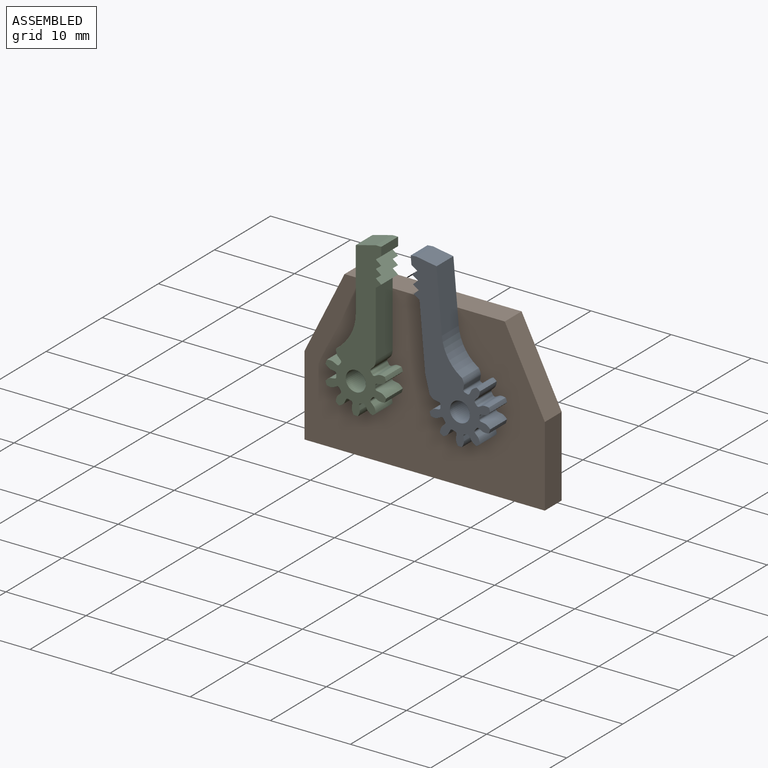
[diagram: assembled view]
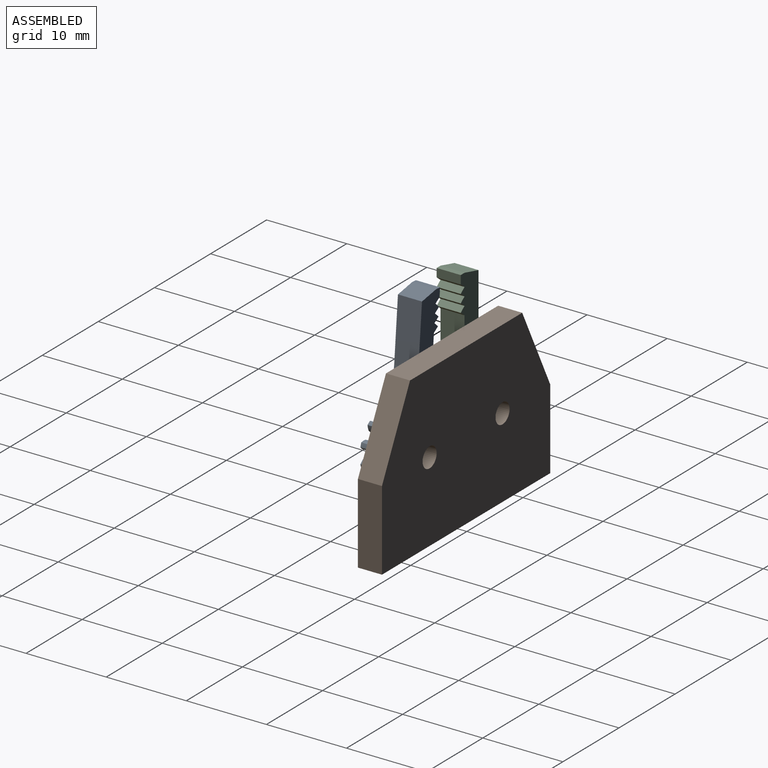
[diagram: assembled view, second angle]
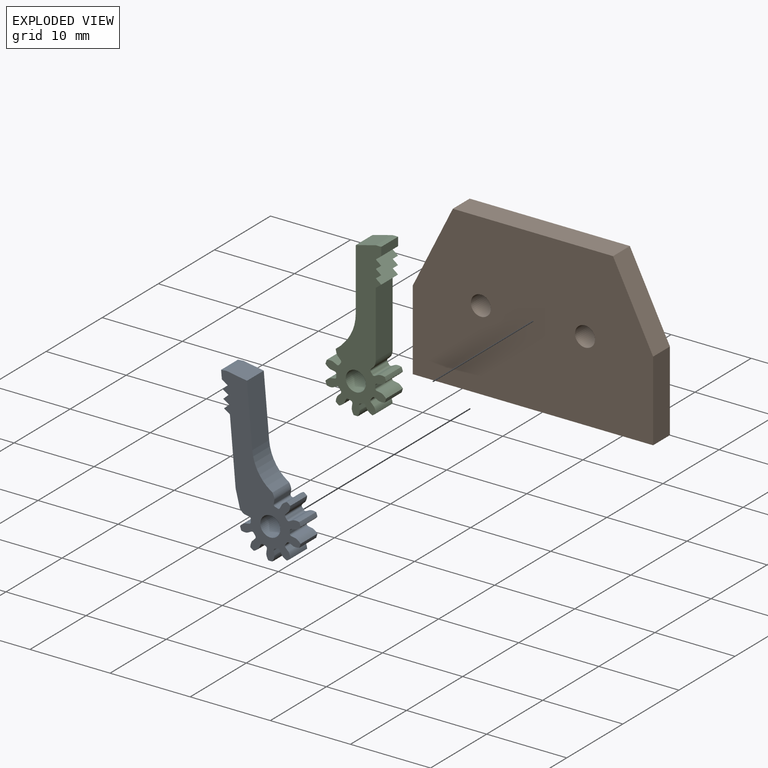
[diagram: exploded view]
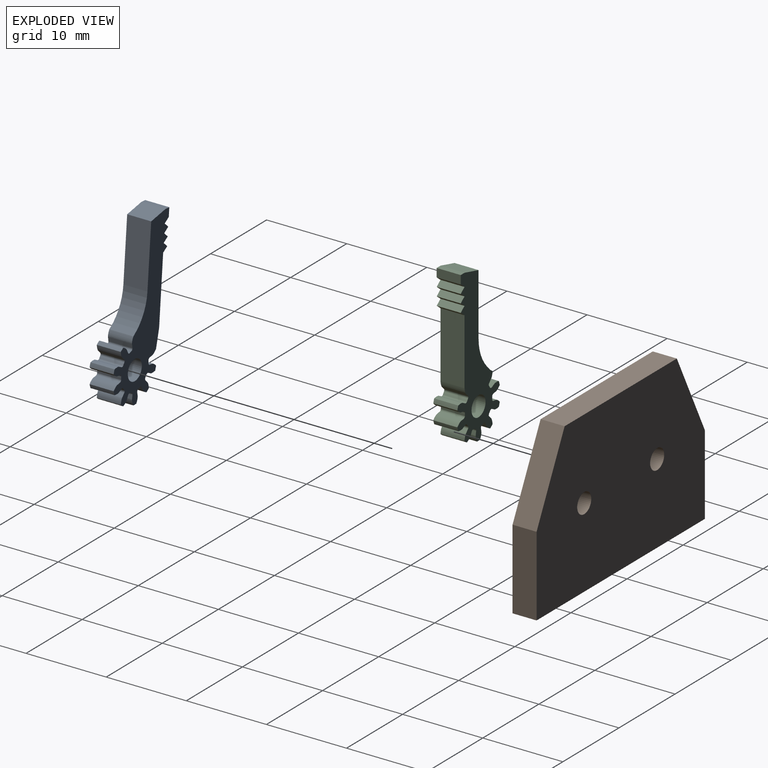
[diagram: exploded view, second angle]
ASSEMBLY  parts=3 mates=2
PART A: 65 faces, bbox 9.9x3x20 mm
  f0: extruded ~3x1.14mm, area 3.9mm2, adj f30,f31,f32,f33
  f1: cylinder r=2.44mm len=3mm, axis (0,1,0), area 0.9mm2, adj f31,f32,f33,f34
  f2: extruded ~3x1.14mm, area 3.9mm2, adj f31,f32,f34,f52
  f3: extruded ~3x1.25mm, area 3.9mm2, adj f31,f32,f35,f51
  f4: cylinder r=2.44mm len=3mm, axis (0,1,0), area 0.9mm2, adj f31,f32,f35,f36
  f5: extruded ~3x0.91mm, area 3.9mm2, adj f6,f31,f32,f36
  f6: cylinder r=3.9mm len=3mm, axis (0,1,0), area 1.6mm2, adj f5,f7,f31,f32
  f7: extruded ~3x1.11mm, area 3.9mm2, adj f6,f31,f32,f37
  f8: cylinder r=2.44mm len=3mm, axis (0,1,0), area 0.9mm2, adj f31,f32,f37,f38
  f9: extruded ~3x1.24mm, area 3.9mm2, adj f10,f31,f32,f38
  f10: cylinder r=3.9mm len=3mm, axis (0,1,0), area 1.6mm2, adj f9,f11,f31,f32
  f11: extruded ~3x1.14mm, area 3.9mm2, adj f10,f31,f32,f39
  f12: cylinder r=2.44mm len=3mm, axis (0,1,0), area 0.9mm2, adj f31,f32,f39,f40
  f13: extruded ~3x1.14mm, area 3.9mm2, adj f14,f31,f32,f40
  f14: cylinder r=3.9mm len=3mm, axis (0,1,0), area 1.6mm2, adj f13,f15,f31,f32
  f15: extruded ~3x1.24mm, area 3.9mm2, adj f14,f31,f32,f41
  f16: cylinder r=2.44mm len=3mm, axis (0,1,0), area 0.9mm2, adj f31,f32,f41,f42
  f17: extruded ~3x1.11mm, area 3.9mm2, adj f18,f31,f32,f42
  f18: cylinder r=3.9mm len=3mm, axis (0,1,0), area 1.6mm2, adj f17,f19,f31,f32
  f19: extruded ~3x0.91mm, area 3.9mm2, adj f18,f31,f32,f43
  f20: cylinder r=2.44mm len=3mm, axis (0,1,0), area 0.9mm2, adj f31,f32,f43,f44
  f21: extruded ~3x1.25mm, area 3.9mm2, adj f22,f31,f32,f44
  f22: cylinder r=3.9mm len=3mm, axis (0,1,0), area 1.6mm2, adj f21,f23,f31,f32
  f23: extruded ~3x1.25mm, area 3.9mm2, adj f22,f31,f32,f45
  f24: cylinder r=2.44mm len=3mm, axis (0,1,0), area 0.9mm2, adj f31,f32,f45,f46
  f25: extruded ~3x0.91mm, area 3.9mm2, adj f26,f31,f32,f46
  f26: cylinder r=3.9mm len=3mm, axis (0,1,0), area 1.6mm2, adj f25,f27,f31,f32
  f27: extruded ~3x1.11mm, area 3.9mm2, adj f26,f31,f32,f47
  f28: cylinder r=2.44mm len=3mm, axis (0,1,0), area 0.9mm2, adj f31,f32,f47,f48
  f29: extruded ~3x1.24mm, area 3.9mm2, adj f30,f31,f32,f48
  f30: cylinder r=3.9mm len=3mm, axis (0,1,0), area 1.6mm2, adj f0,f29,f31,f32
  f31: plane 20x9.94mm, normal (0,-1,0), area 68.5mm2, adj f0,f1,f2,f3,f4,f5,f6,f7
  f32: plane 20x9.94mm, normal (0,1,0), area 68.5mm2, adj f0,f1,f2,f3,f4,f5,f6,f7
  f33: cylinder r=0.25mm len=3mm, axis (0,1,0), area 1.1mm2, adj f0,f1,f31,f32
  f34: cylinder r=0.25mm len=3mm, axis (0,1,0), area 1.1mm2, adj f1,f2,f31,f32
  f35: cylinder r=0.25mm len=3mm, axis (0,1,0), area 1.1mm2, adj f3,f4,f31,f32
  f36: cylinder r=0.25mm len=3mm, axis (0,1,0), area 1.1mm2, adj f4,f5,f31,f32
  f37: cylinder r=0.25mm len=3mm, axis (0,1,0), area 1.1mm2, adj f7,f8,f31,f32
  f38: cylinder r=0.25mm len=3mm, axis (0,1,0), area 1.1mm2, adj f8,f9,f31,f32
  f39: cylinder r=0.25mm len=3mm, axis (0,1,0), area 1.1mm2, adj f11,f12,f31,f32
  f40: cylinder r=0.25mm len=3mm, axis (0,1,0), area 1.1mm2, adj f12,f13,f31,f32
  f41: cylinder r=0.25mm len=3mm, axis (0,1,0), area 1.1mm2, adj f15,f16,f31,f32
  f42: cylinder r=0.25mm len=3mm, axis (0,1,0), area 1.1mm2, adj f16,f17,f31,f32
  f43: cylinder r=0.25mm len=3mm, axis (0,1,0), area 1.1mm2, adj f19,f20,f31,f32
  f44: cylinder r=0.25mm len=3mm, axis (0,1,0), area 1.1mm2, adj f20,f21,f31,f32
  f45: cylinder r=0.25mm len=3mm, axis (0,1,0), area 1.1mm2, adj f23,f24,f31,f32
  f46: cylinder r=0.25mm len=3mm, axis (0,1,0), area 1.1mm2, adj f24,f25,f31,f32
  f47: cylinder r=0.25mm len=3mm, axis (0,1,0), area 1.1mm2, adj f27,f28,f31,f32
  f48: cylinder r=0.25mm len=3mm, axis (0,1,0), area 1.1mm2, adj f28,f29,f31,f32
  f49: cylinder r=1.25mm len=3mm, axis (0,-1,0), area 23.6mm2, adj f31,f32
  f50: cylinder r=5.43mm len=3.57mm, axis (0,-1,0), area 12.3mm2, adj f31,f32,f51,f64
  f51: plane 3x0.72mm, normal (-0.59,0,0.81), area 2.7mm2, adj f3,f31,f32,f50
  f52: plane 3x2.17mm, normal (0.97,0,-0.24), area 6.7mm2, adj f2,f31,f32,f53
  f53: plane 8.18x3mm, normal (1,0,-0.09), area 24.6mm2, adj f31,f32,f52,f54
  f54: plane 3x0.72mm, normal (0.54,0,-0.84), area 2.6mm2, adj f31,f32,f53,f55
  f55: plane 3x0.63mm, normal (0.68,0,0.73), area 2.6mm2, adj f31,f32,f54,f56
  f56: plane 3x0.72mm, normal (0.55,0,-0.84), area 2.6mm2, adj f31,f32,f55,f57
  f57: plane 3x0.63mm, normal (0.68,0,0.73), area 2.6mm2, adj f31,f32,f56,f58
  f58: plane 3x0.72mm, normal (0.55,0,-0.84), area 2.6mm2, adj f31,f32,f57,f59
  f59: plane 3x0.63mm, normal (0.68,0,0.73), area 2.6mm2, adj f31,f32,f58,f60
  f60: plane 3x0.73mm, normal (0.55,0,-0.84), area 2.6mm2, adj f31,f32,f59,f61
  f61: plane 3x1.06mm, normal (1,0,-0.09), area 3.2mm2, adj f31,f32,f60,f62
  f62: plane 3x0.68mm, normal (0.09,0,1), area 2mm2, adj f31,f32,f61,f63
  f63: plane 3x2.55mm, normal (-0.17,0,0.99), area 7.7mm2, adj f31,f32,f62,f64
  f64: plane 7.66x3mm, normal (-1,0,0.09), area 23.1mm2, adj f31,f32,f50,f63
PART B: 10 faces, bbox 30x3x20 mm
  f0: plane 10x5mm, normal (-0.89,0,0.45), area 33.5mm2, adj f1,f7,f8,f9
  f1: plane 10x3mm, normal (-1,0,0), area 30mm2, adj f0,f2,f8,f9
  f2: plane 30x3mm, normal (0,0,-1), area 90mm2, adj f1,f3,f8,f9
  f3: plane 10x3mm, normal (1,0,0), area 30mm2, adj f2,f4,f8,f9
  f4: plane 10x5mm, normal (0.89,0,0.45), area 33.5mm2, adj f3,f7,f8,f9
  f5: cylinder r=1.25mm len=3mm, axis (0,1,0), area 23.6mm2, adj f8,f9
  f6: cylinder r=1.25mm len=3mm, axis (0,1,0), area 23.6mm2, adj f8,f9
  f7: plane 20x3mm, normal (0,0,1), area 60mm2, adj f0,f4,f8,f9
  f8: plane 30x20mm, normal (0,-1,0), area 540.2mm2, adj f0,f1,f2,f3,f4,f5,f6,f7
  f9: plane 30x20mm, normal (0,1,0), area 540.2mm2, adj f0,f1,f2,f3,f4,f5,f6,f7
PART C: 65 faces, bbox 7.6x3x19.9 mm
  f0: extruded ~3x1.14mm, area 3.9mm2, adj f31,f32,f33,f34
  f1: cylinder r=2.44mm len=3mm, axis (0,1,0), area 0.9mm2, adj f32,f33,f34,f35
  f2: extruded ~3x1.14mm, area 3.9mm2, adj f3,f32,f33,f35
  f3: cylinder r=3.9mm len=3mm, axis (0,1,0), area 1.6mm2, adj f2,f4,f32,f33
  f4: extruded ~3x1.24mm, area 3.9mm2, adj f3,f32,f33,f36
  f5: cylinder r=2.44mm len=3mm, axis (0,1,0), area 0.9mm2, adj f32,f33,f36,f37
  f6: extruded ~3x1.11mm, area 3.9mm2, adj f32,f33,f37,f51
  f7: cylinder r=3.9mm len=3mm, axis (0,1,0), area 1.6mm2, adj f8,f32,f33,f64
  f8: extruded ~3x1.11mm, area 3.9mm2, adj f7,f32,f33,f38
  f9: cylinder r=2.44mm len=3mm, axis (0,1,0), area 0.9mm2, adj f32,f33,f38,f39
  f10: extruded ~3x1.24mm, area 3.9mm2, adj f11,f32,f33,f39
  f11: cylinder r=3.9mm len=3mm, axis (0,1,0), area 1.6mm2, adj f10,f12,f32,f33
  f12: extruded ~3x1.14mm, area 3.9mm2, adj f11,f32,f33,f40
  f13: cylinder r=2.44mm len=3mm, axis (0,1,0), area 0.9mm2, adj f32,f33,f40,f41
  f14: extruded ~3x1.14mm, area 3.9mm2, adj f15,f32,f33,f41
  f15: cylinder r=3.9mm len=3mm, axis (0,1,0), area 1.6mm2, adj f14,f16,f32,f33
  f16: extruded ~3x1.24mm, area 3.9mm2, adj f15,f32,f33,f42
  f17: cylinder r=2.44mm len=3mm, axis (0,1,0), area 0.9mm2, adj f32,f33,f42,f43
  f18: extruded ~3x1.11mm, area 3.9mm2, adj f19,f32,f33,f43
  f19: cylinder r=3.9mm len=3mm, axis (0,1,0), area 1.6mm2, adj f18,f20,f32,f33
  f20: extruded ~3x0.91mm, area 3.9mm2, adj f19,f32,f33,f44
  f21: cylinder r=2.44mm len=3mm, axis (0,1,0), area 0.9mm2, adj f32,f33,f44,f45
  f22: extruded ~3x1.25mm, area 3.9mm2, adj f23,f32,f33,f45
  f23: cylinder r=3.9mm len=3mm, axis (0,1,0), area 1.6mm2, adj f22,f24,f32,f33
  f24: extruded ~3x1.25mm, area 3.9mm2, adj f23,f32,f33,f46
  f25: cylinder r=2.44mm len=3mm, axis (0,1,0), area 0.9mm2, adj f32,f33,f46,f47
  f26: extruded ~3x0.91mm, area 3.9mm2, adj f27,f32,f33,f47
  f27: cylinder r=3.9mm len=3mm, axis (0,1,0), area 1.6mm2, adj f26,f28,f32,f33
  f28: extruded ~3x1.11mm, area 3.9mm2, adj f27,f32,f33,f48
  f29: cylinder r=2.44mm len=3mm, axis (0,1,0), area 0.9mm2, adj f32,f33,f48,f49
  f30: extruded ~3x1.24mm, area 3.9mm2, adj f31,f32,f33,f49
  f31: cylinder r=3.9mm len=3mm, axis (0,1,0), area 1.6mm2, adj f0,f30,f32,f33
  f32: plane 19.91x7.6mm, normal (0,-1,0), area 64.2mm2, adj f0,f1,f2,f3,f4,f5,f6,f7
  f33: plane 19.91x7.6mm, normal (0,1,0), area 64.2mm2, adj f0,f1,f2,f3,f4,f5,f6,f7
  f34: cylinder r=0.25mm len=3mm, axis (0,1,0), area 1.1mm2, adj f0,f1,f32,f33
  f35: cylinder r=0.25mm len=3mm, axis (0,1,0), area 1.1mm2, adj f1,f2,f32,f33
  f36: cylinder r=0.25mm len=3mm, axis (0,1,0), area 1.1mm2, adj f4,f5,f32,f33
  f37: cylinder r=0.25mm len=3mm, axis (0,1,0), area 1.1mm2, adj f5,f6,f32,f33
  f38: cylinder r=0.25mm len=3mm, axis (0,1,0), area 1.1mm2, adj f8,f9,f32,f33
  f39: cylinder r=0.25mm len=3mm, axis (0,1,0), area 1.1mm2, adj f9,f10,f32,f33
  f40: cylinder r=0.25mm len=3mm, axis (0,1,0), area 1.1mm2, adj f12,f13,f32,f33
  f41: cylinder r=0.25mm len=3mm, axis (0,1,0), area 1.1mm2, adj f13,f14,f32,f33
  f42: cylinder r=0.25mm len=3mm, axis (0,1,0), area 1.1mm2, adj f16,f17,f32,f33
  f43: cylinder r=0.25mm len=3mm, axis (0,1,0), area 1.1mm2, adj f17,f18,f32,f33
  f44: cylinder r=0.25mm len=3mm, axis (0,1,0), area 1.1mm2, adj f20,f21,f32,f33
  f45: cylinder r=0.25mm len=3mm, axis (0,1,0), area 1.1mm2, adj f21,f22,f32,f33
  f46: cylinder r=0.25mm len=3mm, axis (0,1,0), area 1.1mm2, adj f24,f25,f32,f33
  f47: cylinder r=0.25mm len=3mm, axis (0,1,0), area 1.1mm2, adj f25,f26,f32,f33
  f48: cylinder r=0.25mm len=3mm, axis (0,1,0), area 1.1mm2, adj f28,f29,f32,f33
  f49: cylinder r=0.25mm len=3mm, axis (0,1,0), area 1.1mm2, adj f29,f30,f32,f33
  f50: cylinder r=1.25mm len=3mm, axis (0,-1,0), area 23.6mm2, adj f32,f33
  f51: plane 8.21x3mm, normal (1,0,0), area 24.6mm2, adj f6,f32,f33,f52
  f52: plane 3x0.68mm, normal (0.61,0,-0.79), area 2.6mm2, adj f32,f33,f51,f53
  f53: plane 3x0.68mm, normal (0.62,0,0.79), area 2.6mm2, adj f32,f33,f52,f54
  f54: plane 3x0.68mm, normal (0.62,0,-0.79), area 2.6mm2, adj f32,f33,f53,f55
  f55: plane 3x0.68mm, normal (0.62,0,0.79), area 2.6mm2, adj f32,f33,f54,f56
  f56: plane 3x0.68mm, normal (0.62,0,-0.79), area 2.6mm2, adj f32,f33,f55,f57
  f57: plane 3x0.68mm, normal (0.62,0,0.79), area 2.6mm2, adj f32,f33,f56,f58
  f58: plane 3x0.68mm, normal (0.62,0,-0.79), area 2.6mm2, adj f32,f33,f57,f59
  f59: plane 3x1.06mm, normal (1,0,0), area 3.2mm2, adj f32,f33,f58,f60
  f60: plane 3x0.68mm, normal (0,0,1), area 2mm2, adj f32,f33,f59,f61
  f61: plane 3x2.5mm, normal (-0.25,0,0.97), area 7.7mm2, adj f32,f33,f60,f62
  f62: plane 7.69x3mm, normal (-1,0,0), area 23.1mm2, adj f32,f33,f61,f63
  f63: cylinder r=5.43mm len=3.72mm, axis (0,-1,0), area 12.3mm2, adj f32,f33,f62,f64
  f64: plane 3x0.64mm, normal (-0.73,0,0.68), area 2.7mm2, adj f7,f32,f33,f63
PLACE A rot(axis=(0,0,-1),180deg) t=(-3.89,-26.36,2)mm
PLACE B t=(-10.39,-20.36,2)mm
PLACE C t=(-16.89,-23.36,2)mm
MATE revolute B.f6 <-> C.f50  axis (0,-1,0) through (-16.89,-23.36,2)mm
MATE revolute B.f5 <-> A.f49  axis (0,-1,0) through (-3.89,-23.36,2)mm
